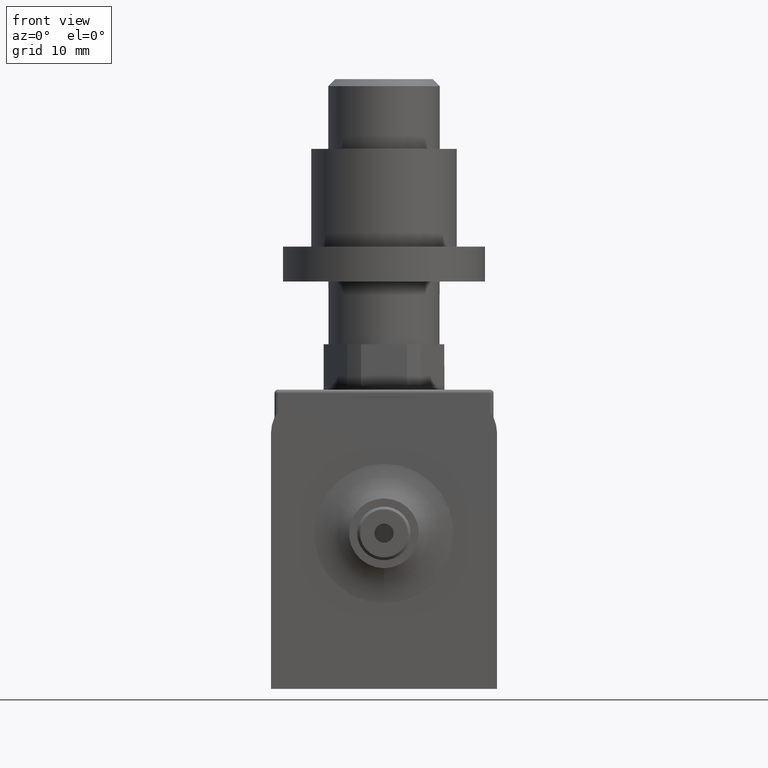
[diagram: clean part render]
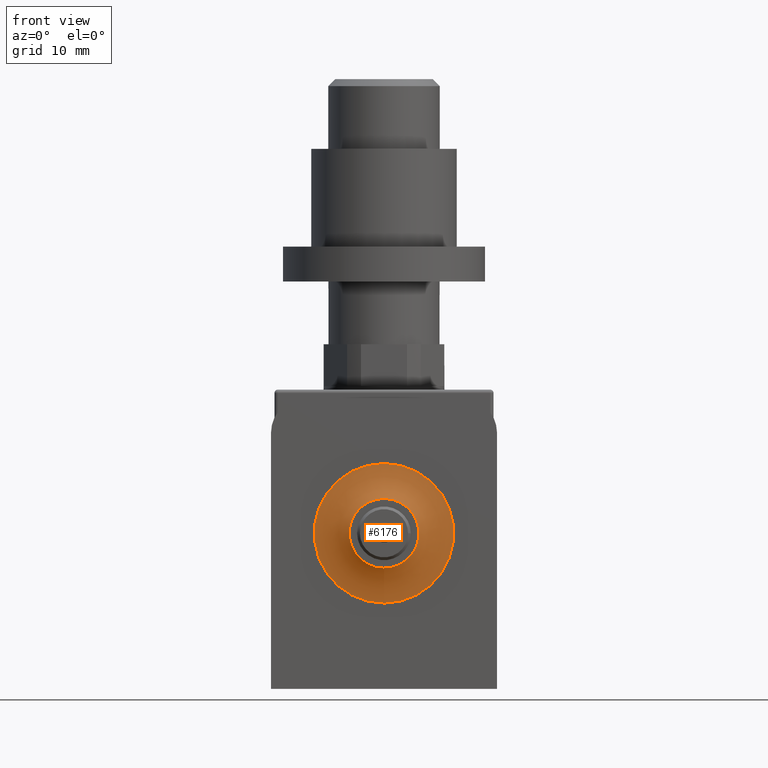
[diagram: same view with one face highlighted and labeled with its STEP entity id]
A machine part, front view. The second image highlights one B-rep face of the part: STEP entity #6176.
In plain terms, the highlighted toroidal blend (fillet) surface has major radius 10 mm and minor (blend) radius 7.5289 mm.
Its self-contained STEP definition (entity closure, byte-faithful):
#1135 = CARTESIAN_POINT ( 'NONE',  ( 0.000000000000000000, -22.00000000000000000, 1.449999999999993072 ) ) ;
#3535 = CARTESIAN_POINT ( 'NONE',  ( 0.000000000000000000, -27.62894736842105914, 1.449999999999993072 ) ) ;
#3629 = DIRECTION ( 'NONE',  ( 0.000000000000000000, 0.000000000000000000, -1.000000000000000000 ) ) ;
#4634 = DIRECTION ( 'NONE',  ( -0.000000000000000000, -1.000000000000000000, -0.000000000000000000 ) ) ;
#4686 = DIRECTION ( 'NONE',  ( 0.000000000000000000, 0.000000000000000000, -1.000000000000000000 ) ) ;
#5475 = EDGE_CURVE ( 'NONE', #11254, #11254, #15276, .T. ) ;
#6176 = ADVANCED_FACE ( 'NONE', ( #9676, #9305 ), #14114, .F. ) ;
#6460 = CIRCLE ( 'NONE', #6821, 5.000000000000000000 ) ;
#6821 = AXIS2_PLACEMENT_3D ( 'NONE', #1135, #12977, #3629 ) ;
#7299 = DIRECTION ( 'NONE',  ( 0.000000000000000000, 0.000000000000000000, -1.000000000000000000 ) ) ;
#9045 = EDGE_LOOP ( 'NONE', ( #14761 ) ) ;
#9305 = FACE_OUTER_BOUND ( 'NONE', #13402, .T. ) ;
#9676 = FACE_OUTER_BOUND ( 'NONE', #9045, .T. ) ;
#9755 = DIRECTION ( 'NONE',  ( -0.000000000000000000, -1.000000000000000000, -0.000000000000000000 ) ) ;
#11028 = AXIS2_PLACEMENT_3D ( 'NONE', #13105, #9755, #7299 ) ;
#11254 = VERTEX_POINT ( 'NONE', #12913 ) ;
#11352 = ORIENTED_EDGE ( 'NONE', *, *, #15285, .F. ) ;
#12424 = AXIS2_PLACEMENT_3D ( 'NONE', #3535, #4634, #4686 ) ;
#12913 = CARTESIAN_POINT ( 'NONE',  ( 0.000000000000000000, -20.10000000000000142, -8.550000000000007816 ) ) ;
#12977 = DIRECTION ( 'NONE',  ( -0.000000000000000000, -1.000000000000000000, -0.000000000000000000 ) ) ;
#13105 = CARTESIAN_POINT ( 'NONE',  ( 0.000000000000000000, -20.10000000000000142, 1.449999999999993072 ) ) ;
#13116 = VERTEX_POINT ( 'NONE', #15251 ) ;
#13402 = EDGE_LOOP ( 'NONE', ( #11352 ) ) ;
#14114 = TOROIDAL_SURFACE ( 'NONE', #12424, 10.00000000000000000, 7.528947368421058606 ) ;
#14761 = ORIENTED_EDGE ( 'NONE', *, *, #5475, .T. ) ;
#15251 = CARTESIAN_POINT ( 'NONE',  ( 0.000000000000000000, -22.00000000000000000, -3.550000000000006928 ) ) ;
#15276 = CIRCLE ( 'NONE', #11028, 10.00000000000000000 ) ;
#15285 = EDGE_CURVE ( 'NONE', #13116, #13116, #6460, .T. ) ;